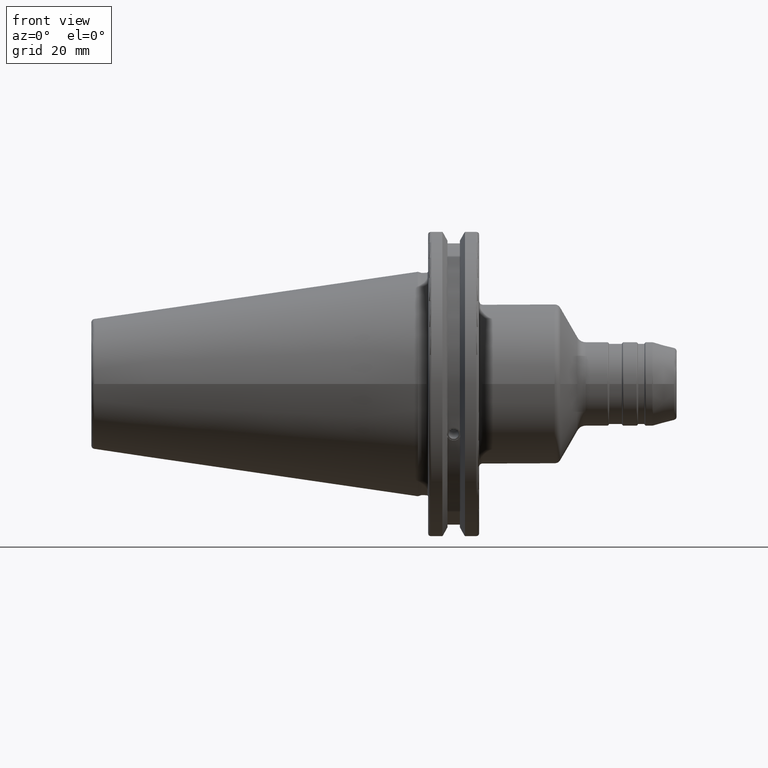
[diagram: clean part render]
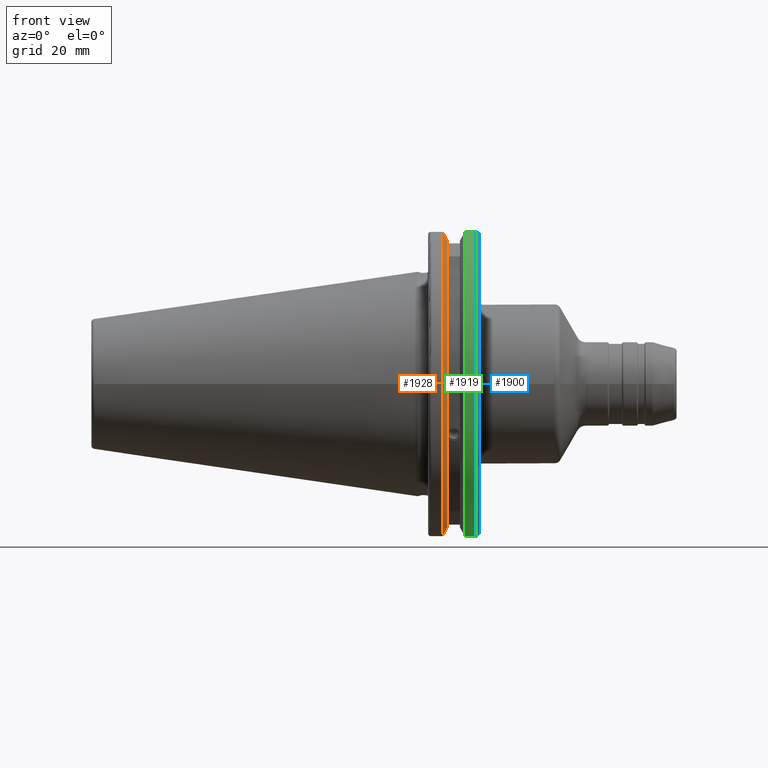
[diagram: same view with three faces highlighted in distinct colors, each labeled with its STEP entity id]
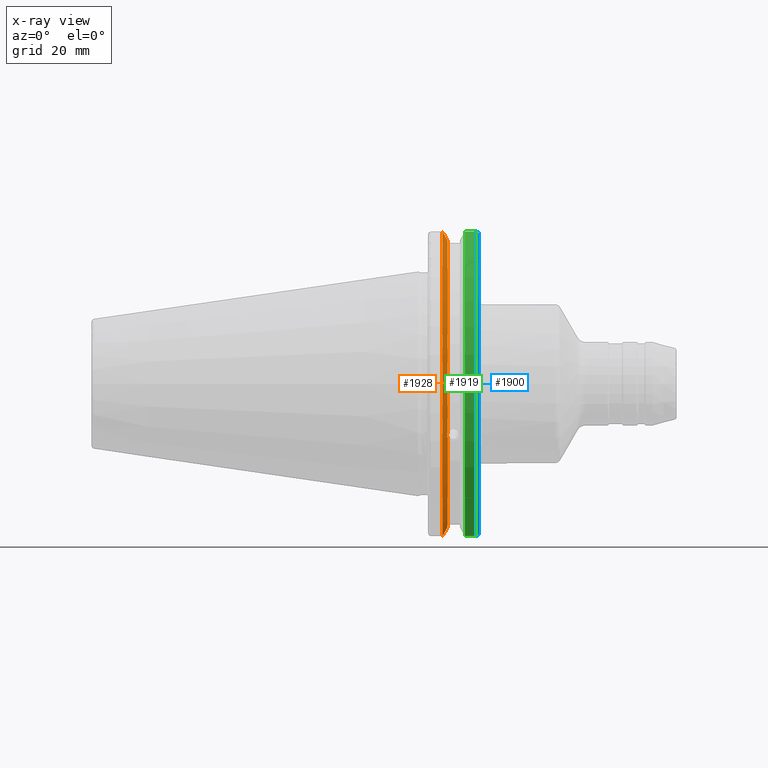
[diagram: x-ray of the same camera — body ghosted, the three highlighted faces saturated]
A machine part, front view with three faces highlighted in distinct colors.
The next image is the same camera in x-ray (body ghosted, the three faces saturated) — at least one of them is partly hidden behind the body in this view.
Their STEP definitions:

[orange] entity #1928 — the highlighted conical surface has half-angle 60 deg.
#24=(
BOUNDED_CURVE()
B_SPLINE_CURVE(2,(#3675,#3676,#3677),.UNSPECIFIED.,.F.,.F.)
B_SPLINE_CURVE_WITH_KNOTS((3,3),(0.,0.275823910673799),.UNSPECIFIED.)
CURVE()
GEOMETRIC_REPRESENTATION_ITEM()
RATIONAL_B_SPLINE_CURVE((1.,1.00038235574547,1.00012873636808))
REPRESENTATION_ITEM('')
);
#25=(
BOUNDED_CURVE()
B_SPLINE_CURVE(2,(#3687,#3688,#3689),.UNSPECIFIED.,.F.,.F.)
B_SPLINE_CURVE_WITH_KNOTS((3,3),(0.0558332664508419,0.331657177124507),
 .UNSPECIFIED.)
CURVE()
GEOMETRIC_REPRESENTATION_ITEM()
RATIONAL_B_SPLINE_CURVE((1.00012873636699,1.00038235574223,1.))
REPRESENTATION_ITEM('')
);
#26=(
BOUNDED_CURVE()
B_SPLINE_CURVE(2,(#3722,#3723,#3724),.UNSPECIFIED.,.F.,.F.)
B_SPLINE_CURVE_WITH_KNOTS((3,3),(0.,0.064824047289869),.UNSPECIFIED.)
CURVE()
GEOMETRIC_REPRESENTATION_ITEM()
RATIONAL_B_SPLINE_CURVE((1.,1.00011477674823,1.00019140645925))
REPRESENTATION_ITEM('')
);
#27=(
BOUNDED_CURVE()
B_SPLINE_CURVE(2,(#3730,#3731,#3732),.UNSPECIFIED.,.F.,.F.)
B_SPLINE_CURVE_WITH_KNOTS((3,3),(0.325260944932363,0.390084992222202),
 .UNSPECIFIED.)
CURVE()
GEOMETRIC_REPRESENTATION_ITEM()
RATIONAL_B_SPLINE_CURVE((1.00019140645909,1.00011477674813,1.))
REPRESENTATION_ITEM('')
);
#119=B_SPLINE_CURVE_WITH_KNOTS('',3,(#3209,#3210,#3211,#3212,#3213,#3214,
#3215,#3216,#3217,#3218,#3219,#3220,#3221,#3222),.UNSPECIFIED.,.F.,.F.,
(4,2,2,2,2,2,4),(0.426712868358719,0.441644498666907,0.480313313223131,
0.518982127779354,0.557650942335578,0.596319756891801,0.611251387199989),
 .UNSPECIFIED.);
#163=CONICAL_SURFACE('',#2183,47.8172386482472,1.0471975511966);
#262=FACE_OUTER_BOUND('',#388,.T.);
#388=EDGE_LOOP('',(#1748,#1749,#1750,#1751,#1752,#1753,#1754,#1755));
#696=CIRCLE('',#2098,46.4219772964944);
#720=CIRCLE('',#2149,49.2125);
#732=CIRCLE('',#2184,46.4219772964944);
#826=VERTEX_POINT('',#3206);
#827=VERTEX_POINT('',#3208);
#844=VERTEX_POINT('',#3299);
#906=VERTEX_POINT('',#3672);
#907=VERTEX_POINT('',#3674);
#910=VERTEX_POINT('',#3686);
#914=VERTEX_POINT('',#3720);
#915=VERTEX_POINT('',#3726);
#1054=EDGE_CURVE('',#827,#826,#119,.T.);
#1077=EDGE_CURVE('',#827,#844,#696,.T.);
#1161=EDGE_CURVE('',#907,#906,#24,.T.);
#1167=EDGE_CURVE('',#910,#844,#25,.T.);
#1175=EDGE_CURVE('',#914,#906,#26,.T.);
#1177=EDGE_CURVE('',#914,#915,#720,.T.);
#1178=EDGE_CURVE('',#910,#915,#27,.T.);
#1211=EDGE_CURVE('',#907,#826,#732,.T.);
#1748=ORIENTED_EDGE('',*,*,#1054,.T.);
#1749=ORIENTED_EDGE('',*,*,#1211,.F.);
#1750=ORIENTED_EDGE('',*,*,#1161,.T.);
#1751=ORIENTED_EDGE('',*,*,#1175,.F.);
#1752=ORIENTED_EDGE('',*,*,#1177,.T.);
#1753=ORIENTED_EDGE('',*,*,#1178,.F.);
#1754=ORIENTED_EDGE('',*,*,#1167,.T.);
#1755=ORIENTED_EDGE('',*,*,#1077,.F.);
#1928=ADVANCED_FACE('',(#262),#163,.T.);
#2098=AXIS2_PLACEMENT_3D('',#3300,#2515,#2516);
#2149=AXIS2_PLACEMENT_3D('',#3728,#2662,#2663);
#2183=AXIS2_PLACEMENT_3D('',#3825,#2745,#2746);
#2184=AXIS2_PLACEMENT_3D('',#3826,#2747,#2748);
#2515=DIRECTION('center_axis',(1.,0.,0.));
#2516=DIRECTION('ref_axis',(0.,0.,-1.));
#2662=DIRECTION('center_axis',(1.,0.,0.));
#2663=DIRECTION('ref_axis',(0.,0.,-1.));
#2745=DIRECTION('center_axis',(-1.,0.,0.));
#2746=DIRECTION('ref_axis',(0.,-1.,-1.22464679914735E-16));
#2747=DIRECTION('center_axis',(1.,0.,0.));
#2748=DIRECTION('ref_axis',(0.,0.,-1.));
#3206=CARTESIAN_POINT('',(9.2191,-43.9096390749305,-15.0646464421033));
#3208=CARTESIAN_POINT('',(9.2191,-43.3201030900029,-16.684383248648));
#3209=CARTESIAN_POINT('Ctrl Pts',(9.2191,-43.3201030900029,-16.6843832486479));
#3210=CARTESIAN_POINT('Ctrl Pts',(9.20211843903392,-43.3613106941341,-16.6592273018006));
#3211=CARTESIAN_POINT('Ctrl Pts',(9.18608675403322,-43.4012416983557,-16.6326763251437));
#3212=CARTESIAN_POINT('Ctrl Pts',(9.13238673845037,-43.5391037343221,-16.5325130832406));
#3213=CARTESIAN_POINT('Ctrl Pts',(9.09621610663555,-43.6406982153491,-16.4411807953719));
#3214=CARTESIAN_POINT('Ctrl Pts',(9.04690868251975,-43.8110833825827,-16.2291323464527));
#3215=CARTESIAN_POINT('Ctrl Pts',(9.0341,-43.8794096049168,-16.10796730316));
#3216=CARTESIAN_POINT('Ctrl Pts',(9.0341,-43.9675796948952,-15.8657219718732));
#3217=CARTESIAN_POINT('Ctrl Pts',(9.04690868251975,-43.9931221605125,-15.7289849146254));
#3218=CARTESIAN_POINT('Ctrl Pts',(9.09621610663555,-43.9989016655819,-15.4570249042868));
#3219=CARTESIAN_POINT('Ctrl Pts',(9.13238673845037,-43.9797830409458,-15.3217566390708));
#3220=CARTESIAN_POINT('Ctrl Pts',(9.18608675403322,-43.9385582852181,-15.1564111356409));
#3221=CARTESIAN_POINT('Ctrl Pts',(9.20211843903392,-43.9250360001461,-15.1104047527575));
#3222=CARTESIAN_POINT('Ctrl Pts',(9.2191,-43.9096390749305,-15.0646464421033));
#3299=CARTESIAN_POINT('',(9.2191,-12.95,-44.5791147973604));
#3300=CARTESIAN_POINT('Origin',(9.2191,0.,0.));
#3672=CARTESIAN_POINT('',(7.88638960562424,-12.95,46.9780755322918));
#3674=CARTESIAN_POINT('',(9.2191,-12.95,44.5791147973604));
#3675=CARTESIAN_POINT('Ctrl Pts',(9.2191,-12.95,44.5791147973604));
#3676=CARTESIAN_POINT('Ctrl Pts',(8.57020449054213,-12.95,45.7494966802443));
#3677=CARTESIAN_POINT('Ctrl Pts',(7.88638960562424,-12.95,46.9780755322918));
#3686=CARTESIAN_POINT('',(7.88638960562425,-12.95,-46.9780755322917));
#3687=CARTESIAN_POINT('Ctrl Pts',(7.88638960562425,-12.95,-46.9780755322917));
#3688=CARTESIAN_POINT('Ctrl Pts',(8.5702044905427,-12.95,-45.7494966802433));
#3689=CARTESIAN_POINT('Ctrl Pts',(9.2191,-12.95,-44.5791147973604));
#3720=CARTESIAN_POINT('',(7.60799096595127,-13.4317035994433,47.3440544806494));
#3722=CARTESIAN_POINT('Ctrl Pts',(7.60799096595127,-13.4317035994433,47.3440544806494));
#3723=CARTESIAN_POINT('Ctrl Pts',(7.74826896663813,-13.1896660169967,47.1601640966265));
#3724=CARTESIAN_POINT('Ctrl Pts',(7.88638960562424,-12.95,46.9780755322918));
#3726=CARTESIAN_POINT('',(7.60799096595127,-13.4317035994433,-47.3440544806494));
#3728=CARTESIAN_POINT('Origin',(7.60799096595127,0.,0.));
#3730=CARTESIAN_POINT('Ctrl Pts',(7.88638960562425,-12.95,-46.9780755322917));
#3731=CARTESIAN_POINT('Ctrl Pts',(7.74826896663813,-13.1896660169967,-47.1601640966265));
#3732=CARTESIAN_POINT('Ctrl Pts',(7.60799096595127,-13.4317035994433,-47.3440544806494));
#3825=CARTESIAN_POINT('Origin',(8.41354548297563,0.,0.));
#3826=CARTESIAN_POINT('Origin',(9.2191,0.,0.));

[blue] entity #1900 — the highlighted toroidal blend (fillet) surface has major radius 48.2125 mm and minor (blend) radius 1 mm.
#85=TOROIDAL_SURFACE('',#2141,48.2125,1.);
#136=B_SPLINE_CURVE_WITH_KNOTS('',3,(#3631,#3632,#3633,#3634,#3635,#3636),
 .UNSPECIFIED.,.F.,.F.,(4,2,4),(0.097707143645253,0.112358403262293,0.150882178076498),
 .UNSPECIFIED.);
#137=B_SPLINE_CURVE_WITH_KNOTS('',3,(#3638,#3639,#3640,#3641,#3642,#3643),
 .UNSPECIFIED.,.F.,.F.,(4,2,4),(0.452859694247731,0.491383469061936,0.506034728678978),
 .UNSPECIFIED.);
#138=B_SPLINE_CURVE_WITH_KNOTS('',3,(#3645,#3646,#3647,#3648,#3649,#3650,
#3651,#3652),.UNSPECIFIED.,.F.,.F.,(4,2,2,4),(-0.104075769062722,-0.0730268503455477,
-0.0343639873656263,0.),.UNSPECIFIED.);
#139=B_SPLINE_CURVE_WITH_KNOTS('',3,(#3655,#3656,#3657,#3658,#3659,#3660,
#3661,#3662),.UNSPECIFIED.,.F.,.F.,(4,2,2,4),(0.,0.0364336453281818,0.0778720357014993,
0.104197480645881),.UNSPECIFIED.);
#234=FACE_OUTER_BOUND('',#359,.T.);
#359=EDGE_LOOP('',(#1603,#1604,#1605,#1606,#1607,#1608));
#674=CIRCLE('',#2055,48.2125);
#718=CIRCLE('',#2142,49.2125);
#801=VERTEX_POINT('',#3033);
#802=VERTEX_POINT('',#3035);
#901=VERTEX_POINT('',#3630);
#902=VERTEX_POINT('',#3637);
#903=VERTEX_POINT('',#3644);
#904=VERTEX_POINT('',#3653);
#1021=EDGE_CURVE('',#802,#801,#674,.T.);
#1153=EDGE_CURVE('',#901,#802,#136,.T.);
#1154=EDGE_CURVE('',#801,#902,#137,.T.);
#1155=EDGE_CURVE('',#902,#903,#138,.T.);
#1156=EDGE_CURVE('',#903,#904,#718,.T.);
#1157=EDGE_CURVE('',#904,#901,#139,.T.);
#1603=ORIENTED_EDGE('',*,*,#1153,.T.);
#1604=ORIENTED_EDGE('',*,*,#1021,.T.);
#1605=ORIENTED_EDGE('',*,*,#1154,.T.);
#1606=ORIENTED_EDGE('',*,*,#1155,.T.);
#1607=ORIENTED_EDGE('',*,*,#1156,.T.);
#1608=ORIENTED_EDGE('',*,*,#1157,.T.);
#1900=ADVANCED_FACE('',(#234),#85,.T.);
#2055=AXIS2_PLACEMENT_3D('',#3036,#2409,#2410);
#2141=AXIS2_PLACEMENT_3D('',#3629,#2635,#2636);
#2142=AXIS2_PLACEMENT_3D('',#3654,#2637,#2638);
#2409=DIRECTION('center_axis',(-1.,0.,0.));
#2410=DIRECTION('ref_axis',(0.,-1.,1.60812264967664E-16));
#2635=DIRECTION('center_axis',(1.,0.,0.));
#2636=DIRECTION('ref_axis',(0.,0.,-1.));
#2637=DIRECTION('center_axis',(1.,0.,0.));
#2638=DIRECTION('ref_axis',(0.,-1.,1.60812264967664E-16));
#3033=CARTESIAN_POINT('',(19.05,-12.95,46.4407434937254));
#3035=CARTESIAN_POINT('',(19.05,-12.95,-46.4407434937254));
#3036=CARTESIAN_POINT('Origin',(19.05,0.,0.));
#3629=CARTESIAN_POINT('Origin',(18.05,0.,0.));
#3630=CARTESIAN_POINT('',(18.9055020570566,-12.95,-46.9780755322917));
#3631=CARTESIAN_POINT('Ctrl Pts',(18.9055020570566,-12.95,-46.9780755322917));
#3632=CARTESIAN_POINT('Ctrl Pts',(18.9322353702005,-12.95,-46.9322596399785));
#3633=CARTESIAN_POINT('Ctrl Pts',(18.9549831813775,-12.95,-46.8849952622217));
#3634=CARTESIAN_POINT('Ctrl Pts',(19.0209992543299,-12.95,-46.7204975987179));
#3635=CARTESIAN_POINT('Ctrl Pts',(19.05,-12.95,-46.5691560764394));
#3636=CARTESIAN_POINT('Ctrl Pts',(19.05,-12.95,-46.4407434937254));
#3637=CARTESIAN_POINT('',(18.9055020570566,-12.95,46.9780755322918));
#3638=CARTESIAN_POINT('Ctrl Pts',(19.05,-12.95,46.4407434937254));
#3639=CARTESIAN_POINT('Ctrl Pts',(19.05,-12.95,46.5691560764394));
#3640=CARTESIAN_POINT('Ctrl Pts',(19.0209992543299,-12.95,46.7204975987179));
#3641=CARTESIAN_POINT('Ctrl Pts',(18.9549831813775,-12.95,46.8849952622217));
#3642=CARTESIAN_POINT('Ctrl Pts',(18.9322353702005,-12.95,46.9322596399785));
#3643=CARTESIAN_POINT('Ctrl Pts',(18.9055020570566,-12.95,46.9780755322918));
#3644=CARTESIAN_POINT('',(18.05,-13.4317035994433,47.3440544806494));
#3645=CARTESIAN_POINT('Ctrl Pts',(18.9055020570566,-12.95,46.9780755322918));
#3646=CARTESIAN_POINT('Ctrl Pts',(18.8571496772125,-13.0300321736484,47.0388807469102));
#3647=CARTESIAN_POINT('Ctrl Pts',(18.792640282015,-13.1083611826073,47.0983919657547));
#3648=CARTESIAN_POINT('Ctrl Pts',(18.6399248789208,-13.2478194810695,47.2043467509586));
#3649=CARTESIAN_POINT('Ctrl Pts',(18.5186188350904,-13.3242014686233,47.2623787015413));
#3650=CARTESIAN_POINT('Ctrl Pts',(18.2983889675417,-13.4067722493645,47.3251126473446));
#3651=CARTESIAN_POINT('Ctrl Pts',(18.1645466245521,-13.4317035994433,47.3440544806494));
#3652=CARTESIAN_POINT('Ctrl Pts',(18.05,-13.4317035994433,47.3440544806494));
#3653=CARTESIAN_POINT('',(18.05,-13.4317035994433,-47.3440544806494));
#3654=CARTESIAN_POINT('Origin',(18.05,0.,0.));
#3655=CARTESIAN_POINT('Ctrl Pts',(18.05,-13.4317035994433,-47.3440544806494));
#3656=CARTESIAN_POINT('Ctrl Pts',(18.1714454844273,-13.4317035994433,-47.3440544806494));
#3657=CARTESIAN_POINT('Ctrl Pts',(18.3128758164404,-13.4037095171132,-47.3227857070233));
#3658=CARTESIAN_POINT('Ctrl Pts',(18.54495745946,-13.3111366376071,-47.2524525703658));
#3659=CARTESIAN_POINT('Ctrl Pts',(18.6710431007969,-13.2254637570201,-47.1873617743322));
#3660=CARTESIAN_POINT('Ctrl Pts',(18.811782280389,-13.0847856162862,-47.0804802022157));
#3661=CARTESIAN_POINT('Ctrl Pts',(18.8641312352177,-13.0184763978125,-47.0301011349397));
#3662=CARTESIAN_POINT('Ctrl Pts',(18.9055020570566,-12.95,-46.9780755322917));

[green] entity #1919 — the highlighted cylindrical surface (partial cylindrical patch) has radius 49.2125 mm, axis along (1, 0, 0).
#253=FACE_OUTER_BOUND('',#379,.T.);
#379=EDGE_LOOP('',(#1709,#1710,#1711,#1712));
#497=LINE('',#3799,#601);
#498=LINE('',#3801,#602);
#601=VECTOR('',#2713,10.);
#602=VECTOR('',#2716,10.);
#692=CIRCLE('',#2091,49.2125);
#718=CIRCLE('',#2142,49.2125);
#838=VERTEX_POINT('',#3275);
#839=VERTEX_POINT('',#3279);
#903=VERTEX_POINT('',#3644);
#904=VERTEX_POINT('',#3653);
#1069=EDGE_CURVE('',#839,#838,#692,.T.);
#1156=EDGE_CURVE('',#903,#904,#718,.T.);
#1200=EDGE_CURVE('',#904,#838,#497,.T.);
#1201=EDGE_CURVE('',#839,#903,#498,.T.);
#1709=ORIENTED_EDGE('',*,*,#1156,.F.);
#1710=ORIENTED_EDGE('',*,*,#1201,.F.);
#1711=ORIENTED_EDGE('',*,*,#1069,.T.);
#1712=ORIENTED_EDGE('',*,*,#1200,.F.);
#1825=CYLINDRICAL_SURFACE('',#2170,49.2125);
#1919=ADVANCED_FACE('',(#253),#1825,.T.);
#2091=AXIS2_PLACEMENT_3D('',#3280,#2499,#2500);
#2142=AXIS2_PLACEMENT_3D('',#3654,#2637,#2638);
#2170=AXIS2_PLACEMENT_3D('',#3800,#2714,#2715);
#2499=DIRECTION('center_axis',(1.,0.,0.));
#2500=DIRECTION('ref_axis',(0.,0.,-1.));
#2637=DIRECTION('center_axis',(1.,0.,0.));
#2638=DIRECTION('ref_axis',(0.,-1.,1.60812264967664E-16));
#2713=DIRECTION('',(-1.,0.,0.));
#2714=DIRECTION('center_axis',(1.,0.,0.));
#2715=DIRECTION('ref_axis',(0.,-1.,1.22464679914735E-16));
#2716=DIRECTION('',(1.,0.,0.));
#3275=CARTESIAN_POINT('',(14.6602090340487,-13.4317035994433,-47.3440544806494));
#3279=CARTESIAN_POINT('',(14.6602090340487,-13.4317035994433,47.3440544806494));
#3280=CARTESIAN_POINT('Origin',(14.6602090340487,0.,0.));
#3644=CARTESIAN_POINT('',(18.05,-13.4317035994433,47.3440544806494));
#3653=CARTESIAN_POINT('',(18.05,-13.4317035994433,-47.3440544806494));
#3654=CARTESIAN_POINT('Origin',(18.05,0.,0.));
#3799=CARTESIAN_POINT('',(16.8551045170244,-13.4317035994433,-47.3440544806494));
#3800=CARTESIAN_POINT('Origin',(16.8551045170244,0.,0.));
#3801=CARTESIAN_POINT('',(16.8551045170244,-13.4317035994433,47.3440544806494));